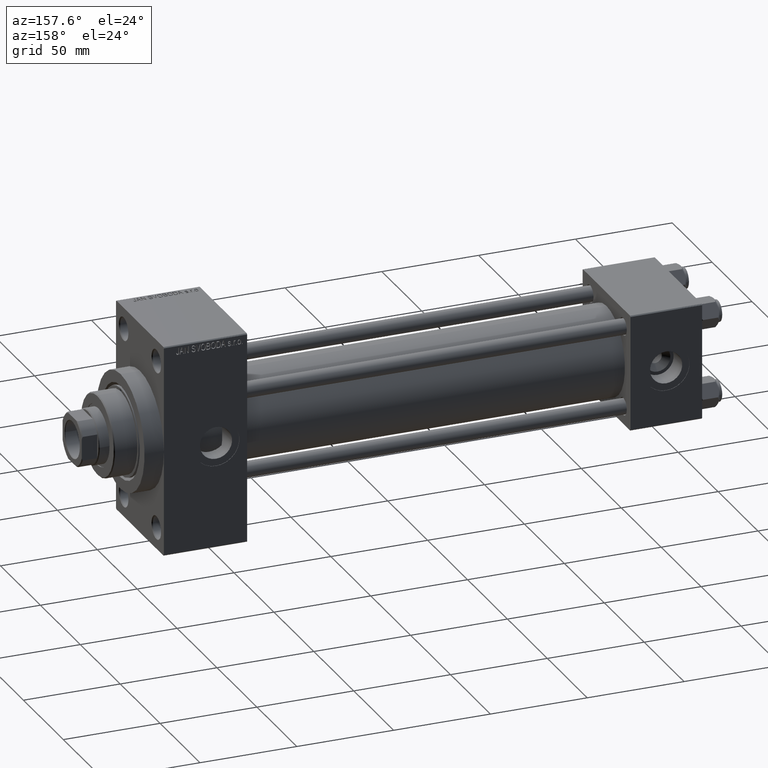
[diagram: clean part render]
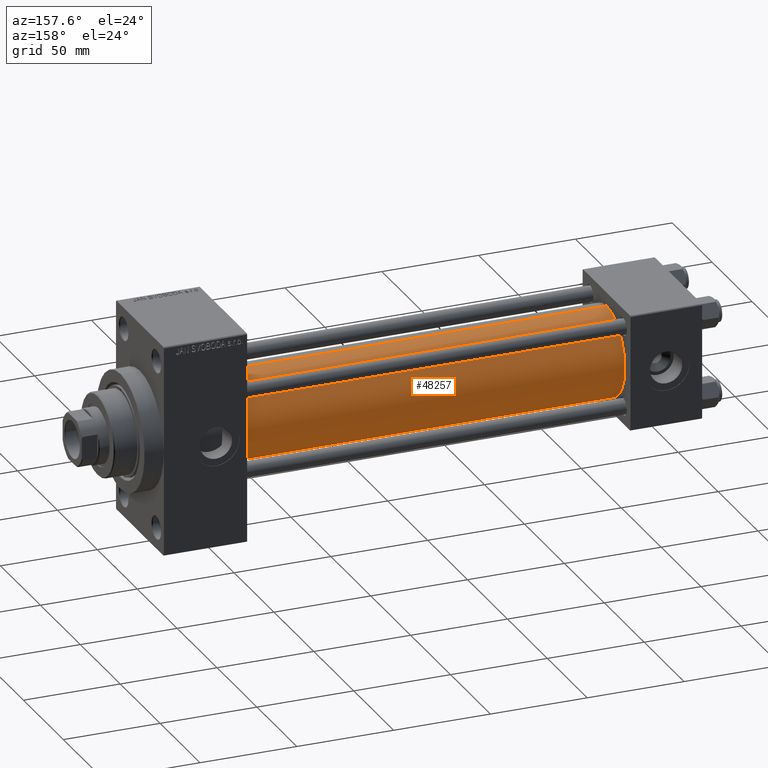
[diagram: same view with one face highlighted and labeled with its STEP entity id]
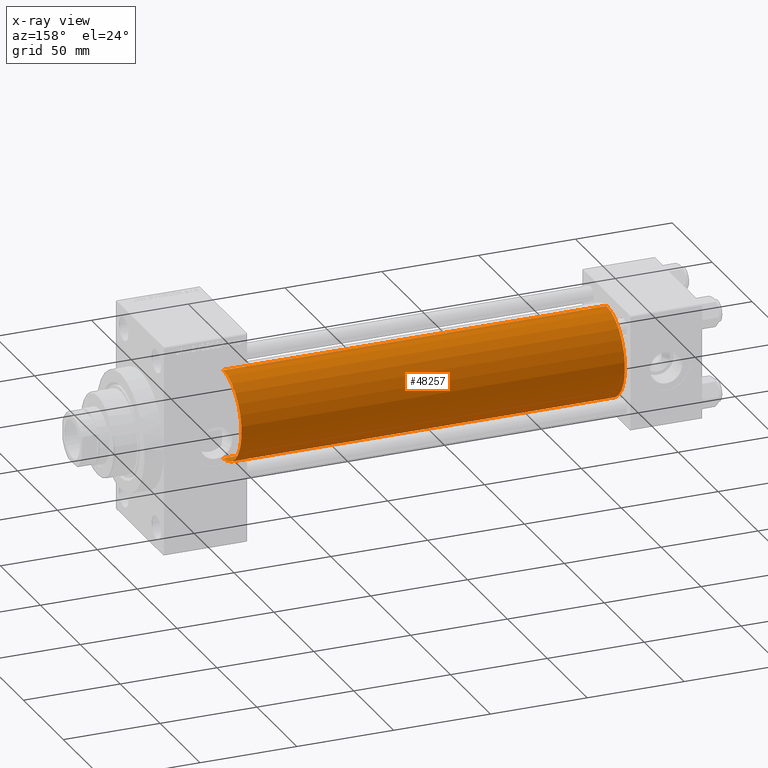
[diagram: x-ray of the same camera — body ghosted, the highlighted face saturated]
A machine part, auxiliary view. The second image highlights one B-rep face of the part: STEP entity #48257.
The next image is the same camera in x-ray: the body ghosted, the highlighted face saturated — about 0% of this face is hidden behind the body in this view.
In plain terms, the highlighted cylindrical surface (partial cylindrical patch) has radius 23 mm, axis along (-1, -0, -0).
Its self-contained STEP definition (entity closure, byte-faithful):
#2718 = CARTESIAN_POINT ( 'NONE',  ( 37.00000000000000711, -2.602085213965210642E-15, 23.00000000000000000 ) ) ;
#4016 = CARTESIAN_POINT ( 'NONE',  ( 235.0000000000000284, -2.602085213965210642E-15, 0.000000000000000000 ) ) ;
#4823 = CIRCLE ( 'NONE', #37616, 23.00000000000000000 ) ;
#6249 = VERTEX_POINT ( 'NONE', #35162 ) ;
#6303 = LINE ( 'NONE', #29361, #24507 ) ;
#10644 = ORIENTED_EDGE ( 'NONE', *, *, #30337, .T. ) ;
#12093 = LINE ( 'NONE', #27394, #34704 ) ;
#14025 = EDGE_CURVE ( 'NONE', #31533, #14387, #4823, .T. ) ;
#14387 = VERTEX_POINT ( 'NONE', #37533 ) ;
#14897 = AXIS2_PLACEMENT_3D ( 'NONE', #38532, #46323, #26002 ) ;
#15550 = DIRECTION ( 'NONE',  ( 0.000000000000000000, 0.000000000000000000, -1.000000000000000000 ) ) ;
#17114 = CIRCLE ( 'NONE', #45143, 23.00000000000000000 ) ;
#18556 = DIRECTION ( 'NONE',  ( 1.000000000000000000, 0.000000000000000000, 0.000000000000000000 ) ) ;
#21961 = ORIENTED_EDGE ( 'NONE', *, *, #14025, .F. ) ;
#21990 = ORIENTED_EDGE ( 'NONE', *, *, #38074, .T. ) ;
#22248 = CYLINDRICAL_SURFACE ( 'NONE', #14897, 23.00000000000000000 ) ;
#24507 = VECTOR ( 'NONE', #48416, 1000.000000000000000 ) ;
#26002 = DIRECTION ( 'NONE',  ( 0.000000000000000000, 0.000000000000000000, 1.000000000000000000 ) ) ;
#27394 = CARTESIAN_POINT ( 'NONE',  ( 235.0000000000000284, -2.602085213965210642E-15, 23.00000000000000000 ) ) ;
#29019 = EDGE_CURVE ( 'NONE', #14387, #43434, #12093, .T. ) ;
#29361 = CARTESIAN_POINT ( 'NONE',  ( 235.0000000000000284, 2.146024240737016609E-16, -23.00000000000000000 ) ) ;
#30337 = EDGE_CURVE ( 'NONE', #6249, #43434, #17114, .T. ) ;
#31533 = VERTEX_POINT ( 'NONE', #37313 ) ;
#34276 = FACE_OUTER_BOUND ( 'NONE', #40590, .T. ) ;
#34704 = VECTOR ( 'NONE', #42672, 1000.000000000000000 ) ;
#35162 = CARTESIAN_POINT ( 'NONE',  ( 37.00000000000000711, 2.146024240737016609E-16, -23.00000000000000000 ) ) ;
#35570 = CARTESIAN_POINT ( 'NONE',  ( 37.00000000000000711, -2.602085213965210642E-15, 0.000000000000000000 ) ) ;
#37313 = CARTESIAN_POINT ( 'NONE',  ( 235.0000000000000284, 2.146024240737016609E-16, -23.00000000000000000 ) ) ;
#37533 = CARTESIAN_POINT ( 'NONE',  ( 235.0000000000000284, -2.602085213965210642E-15, 23.00000000000000000 ) ) ;
#37616 = AXIS2_PLACEMENT_3D ( 'NONE', #4016, #18556, #15550 ) ;
#38074 = EDGE_CURVE ( 'NONE', #31533, #6249, #6303, .T. ) ;
#38532 = CARTESIAN_POINT ( 'NONE',  ( 235.0000000000000284, -2.602085213965210642E-15, 0.000000000000000000 ) ) ;
#40590 = EDGE_LOOP ( 'NONE', ( #21961, #21990, #10644, #47614 ) ) ;
#42672 = DIRECTION ( 'NONE',  ( -1.000000000000000000, -0.000000000000000000, -0.000000000000000000 ) ) ;
#43434 = VERTEX_POINT ( 'NONE', #2718 ) ;
#43596 = DIRECTION ( 'NONE',  ( 0.000000000000000000, 0.000000000000000000, 1.000000000000000000 ) ) ;
#45143 = AXIS2_PLACEMENT_3D ( 'NONE', #35570, #46893, #43596 ) ;
#46323 = DIRECTION ( 'NONE',  ( -1.000000000000000000, -0.000000000000000000, -0.000000000000000000 ) ) ;
#46893 = DIRECTION ( 'NONE',  ( 1.000000000000000000, -0.000000000000000000, 0.000000000000000000 ) ) ;
#47614 = ORIENTED_EDGE ( 'NONE', *, *, #29019, .F. ) ;
#48257 = ADVANCED_FACE ( 'NONE', ( #34276 ), #22248, .T. ) ;
#48416 = DIRECTION ( 'NONE',  ( -1.000000000000000000, -0.000000000000000000, -0.000000000000000000 ) ) ;